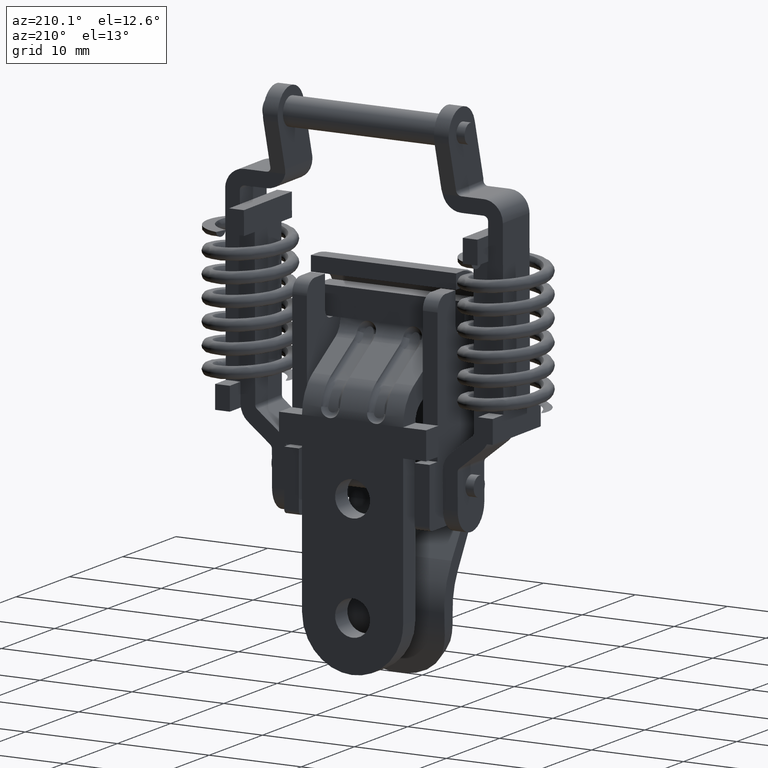
[diagram: clean part render]
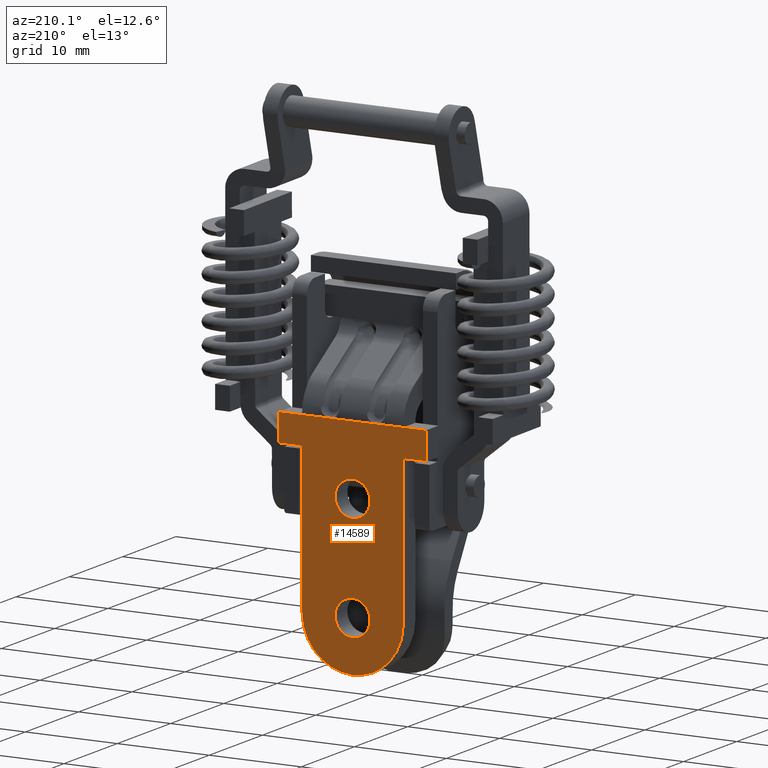
[diagram: same view with one face highlighted and labeled with its STEP entity id]
A machine part, auxiliary view. The second image highlights one B-rep face of the part: STEP entity #14589.
In plain terms, the highlighted face is a freeform B-spline surface patch.
Its self-contained STEP definition (entity closure, byte-faithful):
#8963=CARTESIAN_POINT('',(3.099999999999880,0.0,-33.950000000000003));
#8964=VERTEX_POINT('',#8963);
#8965=CARTESIAN_POINT('',(3.099999999999863,-1.894143032574798,-35.700928969458282));
#8966=VERTEX_POINT('',#8965);
#8967=CARTESIAN_POINT('',(3.099999999999880,0.0,-33.950000000000003));
#8968=CARTESIAN_POINT('',(3.099999999999880,-1.756343098043509,-33.950000000000003));
#8969=CARTESIAN_POINT('',(3.099999999999862,-1.894143032574799,-35.700928969458282));
#8977=(BOUNDED_CURVE()B_SPLINE_CURVE(2,(#8967,#8968,#8969),.UNSPECIFIED.,.F.,.U.)B_SPLINE_CURVE_WITH_KNOTS((3,3),(0.0,0.236331413882161),.UNSPECIFIED.)CURVE()GEOMETRIC_REPRESENTATION_ITEM()RATIONAL_B_SPLINE_CURVE((1.0,0.723120525925278,0.969723592514782))REPRESENTATION_ITEM(''));
#8978=EDGE_CURVE('',#8964,#8966,#8977,.T.);
#9019=CARTESIAN_POINT('',(3.099999999999863,1.894143032574799,-35.999071030541707));
#9020=VERTEX_POINT('',#9019);
#9026=CARTESIAN_POINT('',(3.099999999999863,1.894143032574799,-35.999071030541714));
#9027=CARTESIAN_POINT('',(3.099999999999879,1.900000000000000,-35.924650574740475));
#9028=CARTESIAN_POINT('',(3.099999999999880,1.900000000000000,-35.850000000000001));
#9029=CARTESIAN_POINT('',(3.099999999999881,1.900000000000000,-33.950000000000003));
#9030=CARTESIAN_POINT('',(3.099999999999880,0.0,-33.950000000000003));
#9038=(BOUNDED_CURVE()B_SPLINE_CURVE(2,(#9026,#9027,#9028,#9029,#9030),.UNSPECIFIED.,.F.,.U.)B_SPLINE_CURVE_WITH_KNOTS((3,2,3),(0.736331413882162,0.750000000000000,1.0),.UNSPECIFIED.)CURVE()GEOMETRIC_REPRESENTATION_ITEM()RATIONAL_B_SPLINE_CURVE((0.969723592514783,0.983986255261270,1.0,0.707106781186547,1.0))REPRESENTATION_ITEM(''));
#9039=EDGE_CURVE('',#9020,#8964,#9038,.T.);
#9062=CARTESIAN_POINT('',(3.099999999999880,0.0,-37.750000000000000));
#9063=VERTEX_POINT('',#9062);
#9064=CARTESIAN_POINT('',(3.099999999999863,-1.894143032574798,-35.700928969458275));
#9065=CARTESIAN_POINT('',(3.099999999999880,-1.900000000000000,-35.775349425259513));
#9066=CARTESIAN_POINT('',(3.099999999999880,-1.900000000000000,-35.850000000000001));
#9067=CARTESIAN_POINT('',(3.099999999999881,-1.900000000000000,-37.750000000000007));
#9068=CARTESIAN_POINT('',(3.099999999999880,0.0,-37.750000000000000));
#9076=(BOUNDED_CURVE()B_SPLINE_CURVE(2,(#9064,#9065,#9066,#9067,#9068),.UNSPECIFIED.,.F.,.U.)B_SPLINE_CURVE_WITH_KNOTS((3,2,3),(0.236331413882161,0.250000000000000,0.500000000000000),.UNSPECIFIED.)CURVE()GEOMETRIC_REPRESENTATION_ITEM()RATIONAL_B_SPLINE_CURVE((0.969723592514782,0.983986255261269,1.0,0.707106781186547,1.0))REPRESENTATION_ITEM(''));
#9077=EDGE_CURVE('',#8966,#9063,#9076,.T.);
#9079=CARTESIAN_POINT('',(3.099999999999880,0.0,-37.750000000000000));
#9080=CARTESIAN_POINT('',(3.099999999999880,1.756343098043510,-37.749999999999993));
#9081=CARTESIAN_POINT('',(3.099999999999862,1.894143032574799,-35.999071030541714));
#9089=(BOUNDED_CURVE()B_SPLINE_CURVE(2,(#9079,#9080,#9081),.UNSPECIFIED.,.F.,.U.)B_SPLINE_CURVE_WITH_KNOTS((3,3),(0.500000000000000,0.736331413882161),.UNSPECIFIED.)CURVE()GEOMETRIC_REPRESENTATION_ITEM()RATIONAL_B_SPLINE_CURVE((1.0,0.723120525925278,0.969723592514782))REPRESENTATION_ITEM(''));
#9090=EDGE_CURVE('',#9063,#9020,#9089,.T.);
#9145=CARTESIAN_POINT('',(3.099999999999880,0.0,-45.450000000000003));
#9146=VERTEX_POINT('',#9145);
#9147=CARTESIAN_POINT('',(3.099999999999863,-1.894143032574799,-47.200928969458289));
#9148=VERTEX_POINT('',#9147);
#9149=CARTESIAN_POINT('',(3.099999999999880,0.0,-45.450000000000003));
#9150=CARTESIAN_POINT('',(3.099999999999881,-1.756343098043516,-45.450000000000017));
#9151=CARTESIAN_POINT('',(3.099999999999862,-1.894143032574799,-47.200928969458289));
#9159=(BOUNDED_CURVE()B_SPLINE_CURVE(2,(#9149,#9150,#9151),.UNSPECIFIED.,.F.,.U.)B_SPLINE_CURVE_WITH_KNOTS((3,3),(0.0,0.236331413882162),.UNSPECIFIED.)CURVE()GEOMETRIC_REPRESENTATION_ITEM()RATIONAL_B_SPLINE_CURVE((1.0,0.723120525925277,0.969723592514784))REPRESENTATION_ITEM(''));
#9160=EDGE_CURVE('',#9146,#9148,#9159,.T.);
#9201=CARTESIAN_POINT('',(3.099999999999863,1.894143032574799,-47.499071030541707));
#9202=VERTEX_POINT('',#9201);
#9208=CARTESIAN_POINT('',(3.099999999999863,1.894143032574799,-47.499071030541714));
#9209=CARTESIAN_POINT('',(3.099999999999879,1.900000000000000,-47.424650574740475));
#9210=CARTESIAN_POINT('',(3.099999999999880,1.900000000000000,-47.350000000000001));
#9211=CARTESIAN_POINT('',(3.099999999999881,1.900000000000000,-45.450000000000010));
#9212=CARTESIAN_POINT('',(3.099999999999880,0.0,-45.450000000000003));
#9220=(BOUNDED_CURVE()B_SPLINE_CURVE(2,(#9208,#9209,#9210,#9211,#9212),.UNSPECIFIED.,.F.,.U.)B_SPLINE_CURVE_WITH_KNOTS((3,2,3),(0.736331413882162,0.750000000000000,1.0),.UNSPECIFIED.)CURVE()GEOMETRIC_REPRESENTATION_ITEM()RATIONAL_B_SPLINE_CURVE((0.969723592514783,0.983986255261270,1.0,0.707106781186547,1.0))REPRESENTATION_ITEM(''));
#9221=EDGE_CURVE('',#9202,#9146,#9220,.T.);
#9244=CARTESIAN_POINT('',(3.099999999999880,0.0,-49.250000000000000));
#9245=VERTEX_POINT('',#9244);
#9246=CARTESIAN_POINT('',(3.099999999999863,-1.894143032574798,-47.200928969458289));
#9247=CARTESIAN_POINT('',(3.099999999999880,-1.900000000000000,-47.275349425259527));
#9248=CARTESIAN_POINT('',(3.099999999999880,-1.900000000000000,-47.350000000000001));
#9249=CARTESIAN_POINT('',(3.099999999999881,-1.900000000000000,-49.250000000000007));
#9250=CARTESIAN_POINT('',(3.099999999999880,0.0,-49.250000000000000));
#9258=(BOUNDED_CURVE()B_SPLINE_CURVE(2,(#9246,#9247,#9248,#9249,#9250),.UNSPECIFIED.,.F.,.U.)B_SPLINE_CURVE_WITH_KNOTS((3,2,3),(0.236331413882162,0.250000000000000,0.500000000000000),.UNSPECIFIED.)CURVE()GEOMETRIC_REPRESENTATION_ITEM()RATIONAL_B_SPLINE_CURVE((0.969723592514784,0.983986255261270,1.0,0.707106781186547,1.0))REPRESENTATION_ITEM(''));
#9259=EDGE_CURVE('',#9148,#9245,#9258,.T.);
#9261=CARTESIAN_POINT('',(3.099999999999880,0.0,-49.250000000000000));
#9262=CARTESIAN_POINT('',(3.099999999999880,1.756343098043510,-49.250000000000014));
#9263=CARTESIAN_POINT('',(3.099999999999862,1.894143032574799,-47.499071030541714));
#9271=(BOUNDED_CURVE()B_SPLINE_CURVE(2,(#9261,#9262,#9263),.UNSPECIFIED.,.F.,.U.)B_SPLINE_CURVE_WITH_KNOTS((3,3),(0.500000000000000,0.736331413882161),.UNSPECIFIED.)CURVE()GEOMETRIC_REPRESENTATION_ITEM()RATIONAL_B_SPLINE_CURVE((1.0,0.723120525925278,0.969723592514782))REPRESENTATION_ITEM(''));
#9272=EDGE_CURVE('',#9245,#9202,#9271,.T.);
#13223=CARTESIAN_POINT('',(3.099999999999910,-2.499999999999945,-28.350000000000001));
#13224=VERTEX_POINT('',#13223);
#13303=CARTESIAN_POINT('',(3.099999999999910,2.499999999999945,-28.350000000000001));
#13304=VERTEX_POINT('',#13303);
#13526=CARTESIAN_POINT('',(3.099999999999910,5.500000000000000,-47.350000000000001));
#13527=VERTEX_POINT('',#13526);
#13533=CARTESIAN_POINT('',(3.099999999999910,-5.500000000000000,-47.350000000000001));
#13534=VERTEX_POINT('',#13533);
#13535=CARTESIAN_POINT('',(3.099999999999910,-5.499999999999889,-47.350000000000001));
#13536=CARTESIAN_POINT('',(3.099999999999910,-5.499999999999889,-52.850000000000009));
#13537=CARTESIAN_POINT('',(3.099999999999910,1.110223E-013,-52.850000000000001));
#13538=CARTESIAN_POINT('',(3.099999999999910,5.500000000000111,-52.850000000000009));
#13539=CARTESIAN_POINT('',(3.099999999999910,5.500000000000111,-47.350000000000001));
#13547=(BOUNDED_CURVE()B_SPLINE_CURVE(2,(#13535,#13536,#13537,#13538,#13539),.UNSPECIFIED.,.F.,.U.)B_SPLINE_CURVE_WITH_KNOTS((3,2,3),(0.0,0.500000000000000,1.0),.UNSPECIFIED.)CURVE()GEOMETRIC_REPRESENTATION_ITEM()RATIONAL_B_SPLINE_CURVE((1.0,0.707106781186548,1.0,0.707106781186548,1.0))REPRESENTATION_ITEM(''));
#13548=EDGE_CURVE('',#13534,#13527,#13547,.T.);
#13563=CARTESIAN_POINT('',(3.099999999999880,-5.499999999999940,-31.350000000000001));
#13564=VERTEX_POINT('',#13563);
#13572=CARTESIAN_POINT('',(3.099999999999910,-8.0,-31.350000000000001));
#13573=VERTEX_POINT('',#13572);
#13574=CARTESIAN_POINT('',(3.099999999999910,-8.0,-31.350000000000001));
#13575=CARTESIAN_POINT('',(3.099999999999880,-5.499999999999940,-31.350000000000001));
#13576=QUASI_UNIFORM_CURVE('',1,(#13574,#13575),.UNSPECIFIED.,.F.,.U.);
#13577=EDGE_CURVE('',#13573,#13564,#13576,.T.);
#13605=CARTESIAN_POINT('',(3.099999999999880,-5.499999999999940,-31.350000000000001));
#13606=CARTESIAN_POINT('',(3.099999999999910,-5.500000000000000,-47.350000000000001));
#13607=QUASI_UNIFORM_CURVE('',1,(#13605,#13606),.UNSPECIFIED.,.F.,.U.);
#13608=EDGE_CURVE('',#13564,#13534,#13607,.T.);
#13628=CARTESIAN_POINT('',(3.099999999999910,8.0,-31.350000000000001));
#13629=VERTEX_POINT('',#13628);
#13635=CARTESIAN_POINT('',(3.099999999999880,5.500000000000000,-31.350000000000001));
#13636=VERTEX_POINT('',#13635);
#13637=CARTESIAN_POINT('',(3.099999999999910,8.0,-31.350000000000001));
#13638=CARTESIAN_POINT('',(3.099999999999880,5.500000000000000,-31.350000000000001));
#13639=QUASI_UNIFORM_CURVE('',1,(#13637,#13638),.UNSPECIFIED.,.F.,.U.);
#13640=EDGE_CURVE('',#13629,#13636,#13639,.T.);
#13655=CARTESIAN_POINT('',(3.099999999999880,5.500000000000000,-31.350000000000001));
#13656=CARTESIAN_POINT('',(3.099999999999910,5.500000000000000,-47.350000000000001));
#13657=QUASI_UNIFORM_CURVE('',1,(#13655,#13656),.UNSPECIFIED.,.F.,.U.);
#13658=EDGE_CURVE('',#13636,#13527,#13657,.T.);
#13720=CARTESIAN_POINT('',(3.100000000000000,-8.0,-28.350000000000001));
#13721=VERTEX_POINT('',#13720);
#13727=CARTESIAN_POINT('',(3.100000000000000,-5.499999999999940,-28.350000000000001));
#13728=VERTEX_POINT('',#13727);
#13729=CARTESIAN_POINT('',(3.100000000000000,-8.0,-28.350000000000001));
#13730=CARTESIAN_POINT('',(3.100000000000000,-5.499999999999940,-28.350000000000001));
#13731=QUASI_UNIFORM_CURVE('',1,(#13729,#13730),.UNSPECIFIED.,.F.,.U.);
#13732=EDGE_CURVE('',#13721,#13728,#13731,.T.);
#13865=CARTESIAN_POINT('',(3.100000000000000,5.500000000000000,-28.350000000000001));
#13866=VERTEX_POINT('',#13865);
#13872=CARTESIAN_POINT('',(3.100000000000000,8.0,-28.350000000000001));
#13873=VERTEX_POINT('',#13872);
#13874=CARTESIAN_POINT('',(3.100000000000000,8.0,-28.350000000000001));
#13875=CARTESIAN_POINT('',(3.100000000000000,5.500000000000000,-28.350000000000001));
#13876=QUASI_UNIFORM_CURVE('',1,(#13874,#13875),.UNSPECIFIED.,.F.,.U.);
#13877=EDGE_CURVE('',#13873,#13866,#13876,.T.);
#14112=CARTESIAN_POINT('',(3.099999999999910,-8.0,-31.350000000000001));
#14113=CARTESIAN_POINT('',(3.100000000000000,-8.0,-28.350000000000001));
#14114=QUASI_UNIFORM_CURVE('',1,(#14112,#14113),.UNSPECIFIED.,.F.,.U.);
#14115=EDGE_CURVE('',#13573,#13721,#14114,.T.);
#14182=CARTESIAN_POINT('',(3.100000000000000,-5.499999999999940,-28.350000000000001));
#14183=CARTESIAN_POINT('',(3.099999999999910,-2.499999999999945,-28.350000000000001));
#14184=QUASI_UNIFORM_CURVE('',1,(#14182,#14183),.UNSPECIFIED.,.F.,.U.);
#14185=EDGE_CURVE('',#13728,#13224,#14184,.T.);
#14274=CARTESIAN_POINT('',(3.099999999999910,8.0,-31.350000000000001));
#14275=CARTESIAN_POINT('',(3.100000000000000,8.0,-28.350000000000001));
#14276=QUASI_UNIFORM_CURVE('',1,(#14274,#14275),.UNSPECIFIED.,.F.,.U.);
#14277=EDGE_CURVE('',#13629,#13873,#14276,.T.);
#14341=CARTESIAN_POINT('',(3.099999999999910,2.499999999999945,-28.350000000000001));
#14342=CARTESIAN_POINT('',(3.100000000000000,5.500000000000000,-28.350000000000001));
#14343=QUASI_UNIFORM_CURVE('',1,(#14341,#14342),.UNSPECIFIED.,.F.,.U.);
#14344=EDGE_CURVE('',#13304,#13866,#14343,.T.);
#14407=CARTESIAN_POINT('',(3.099999999999910,-2.499999999999945,-28.350000000000001));
#14408=CARTESIAN_POINT('',(3.099999999999910,2.499999999999945,-28.350000000000001));
#14409=QUASI_UNIFORM_CURVE('',1,(#14407,#14408),.UNSPECIFIED.,.F.,.U.);
#14410=EDGE_CURVE('',#13224,#13304,#14409,.T.);
#14558=CARTESIAN_POINT('',(3.099999999999910,-8.799199968988896,-54.073773255063728));
#14559=CARTESIAN_POINT('',(3.099999999999910,-8.799199968988896,-27.126226306842121));
#14560=CARTESIAN_POINT('',(3.099999999999910,8.799200398142338,-54.073773255063728));
#14561=CARTESIAN_POINT('',(3.099999999999910,8.799200398142338,-27.126226306842121));
#14562=B_SPLINE_SURFACE_WITH_KNOTS('',1,1,((#14558,#14560),(#14559,#14561)),.UNSPECIFIED.,.F.,.F.,.U.,(2,2),(2,2),(0.0,26.947546948221611),(0.0,17.598400367131230),.UNSPECIFIED.);
#14563=ORIENTED_EDGE('',*,*,#13548,.T.);
#14564=ORIENTED_EDGE('',*,*,#13658,.F.);
#14565=ORIENTED_EDGE('',*,*,#13640,.F.);
#14566=ORIENTED_EDGE('',*,*,#14277,.T.);
#14567=ORIENTED_EDGE('',*,*,#13877,.T.);
#14568=ORIENTED_EDGE('',*,*,#14344,.F.);
#14569=ORIENTED_EDGE('',*,*,#14410,.F.);
#14570=ORIENTED_EDGE('',*,*,#14185,.F.);
#14571=ORIENTED_EDGE('',*,*,#13732,.F.);
#14572=ORIENTED_EDGE('',*,*,#14115,.F.);
#14573=ORIENTED_EDGE('',*,*,#13577,.T.);
#14574=ORIENTED_EDGE('',*,*,#13608,.T.);
#14575=EDGE_LOOP('',(#14563,#14564,#14565,#14566,#14567,#14568,#14569,#14570,#14571,#14572,#14573,#14574));
#14576=FACE_OUTER_BOUND('',#14575,.T.);
#14577=ORIENTED_EDGE('',*,*,#9272,.F.);
#14578=ORIENTED_EDGE('',*,*,#9259,.F.);
#14579=ORIENTED_EDGE('',*,*,#9160,.F.);
#14580=ORIENTED_EDGE('',*,*,#9221,.F.);
#14581=EDGE_LOOP('',(#14577,#14578,#14579,#14580));
#14582=FACE_BOUND('',#14581,.T.);
#14583=ORIENTED_EDGE('',*,*,#9090,.F.);
#14584=ORIENTED_EDGE('',*,*,#9077,.F.);
#14585=ORIENTED_EDGE('',*,*,#8978,.F.);
#14586=ORIENTED_EDGE('',*,*,#9039,.F.);
#14587=EDGE_LOOP('',(#14583,#14584,#14585,#14586));
#14588=FACE_BOUND('',#14587,.T.);
#14589=ADVANCED_FACE('',(#14576,#14582,#14588),#14562,.F.);